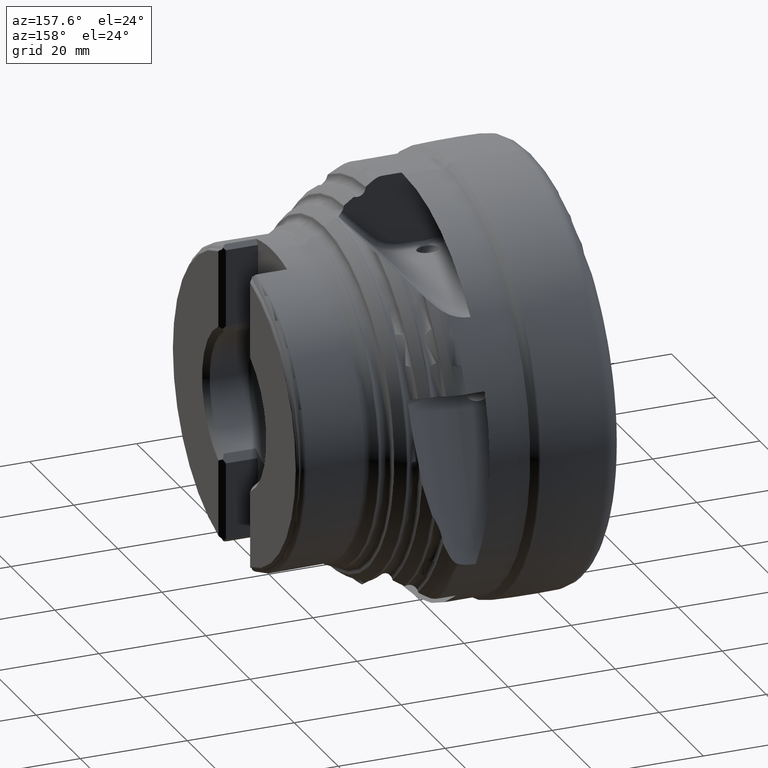
[diagram: clean part render]
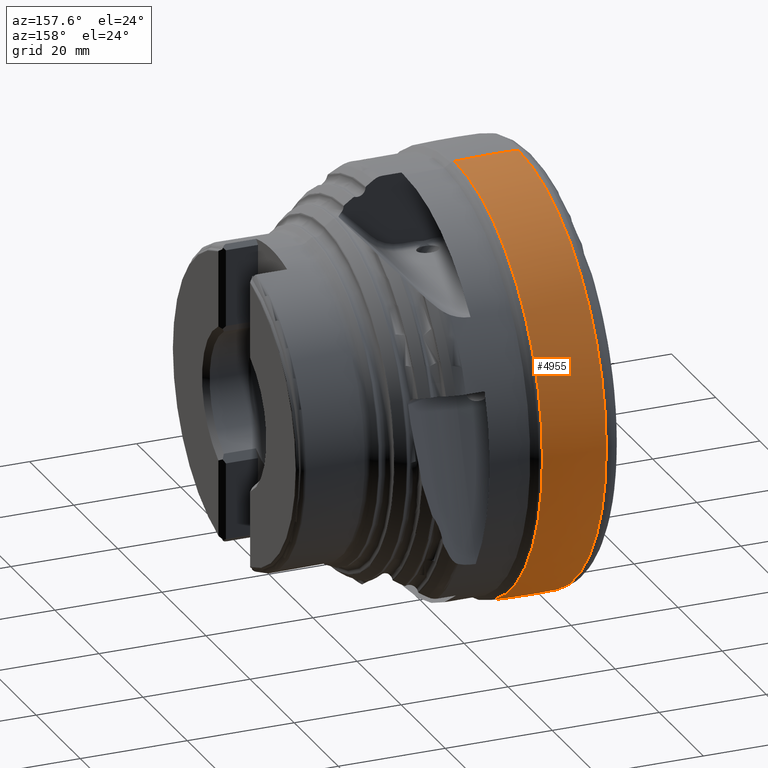
[diagram: same view with one face highlighted and labeled with its STEP entity id]
A machine part, auxiliary view. The second image highlights one B-rep face of the part: STEP entity #4955.
In plain terms, the highlighted toroidal blend (fillet) surface has major radius 119.593 mm and minor (blend) radius 159.662 mm.
Its self-contained STEP definition (entity closure, byte-faithful):
#519 = AXIS2_PLACEMENT_3D ( 'NONE', #2164, #2103, #2114 ) ;
#944 = FACE_OUTER_BOUND ( 'NONE', #6304, .T. ) ;
#951 = TOROIDAL_SURFACE ( 'NONE', #519, -119.5928892692118500, 159.6616597382648900 ) ;
#1224 = CIRCLE ( 'NONE', #1971, 39.90586794183403900 ) ;
#1228 = CIRCLE ( 'NONE', #1972, 159.6616597382648600 ) ;
#1238 = CIRCLE ( 'NONE', #1978, 159.6616597382648600 ) ;
#1254 = CIRCLE ( 'NONE', #1990, 40.00000000000000000 ) ;
#1971 = AXIS2_PLACEMENT_3D ( 'NONE', #2652, #2653, #2654 ) ;
#1972 = AXIS2_PLACEMENT_3D ( 'NONE', #2655, #2683, #2684 ) ;
#1978 = AXIS2_PLACEMENT_3D ( 'NONE', #2737, #2774, #2775 ) ;
#1990 = AXIS2_PLACEMENT_3D ( 'NONE', #2835, #2841, #2842 ) ;
#2103 = DIRECTION ( 'NONE',  ( -1.000000000000000000, -0.0000000000000000000, -0.0000000000000000000 ) ) ;
#2114 = DIRECTION ( 'NONE',  ( 0.0000000000000000000, 0.0000000000000000000, 1.000000000000000000 ) ) ;
#2164 = CARTESIAN_POINT ( 'NONE',  ( 6.339659694705658500, 0.0000000000000000000, 0.0000000000000000000 ) ) ;
#2652 = CARTESIAN_POINT ( 'NONE',  ( 13.55021019444645200, 0.0000000000000000000, 0.0000000000000000000 ) ) ;
#2653 = DIRECTION ( 'NONE',  ( -1.000000000000000000, -0.0000000000000000000, -0.0000000000000000000 ) ) ;
#2654 = DIRECTION ( 'NONE',  ( 0.0000000000000000000, 0.0000000000000000000, 1.000000000000000000 ) ) ;
#2655 = CARTESIAN_POINT ( 'NONE',  ( 6.339659694705658500, -1.464590490443241500E-014, 119.5928892692118500 ) ) ;
#2683 = DIRECTION ( 'NONE',  ( -0.0000000000000000000, 1.000000000000000000, 1.224646799147353200E-016 ) ) ;
#2684 = DIRECTION ( 'NONE',  ( 0.0000000000000000000, -1.224646799147353200E-016, 1.000000000000000000 ) ) ;
#2737 = CARTESIAN_POINT ( 'NONE',  ( 6.339659694705658500, 0.0000000000000000000, -119.5928892692118500 ) ) ;
#2774 = DIRECTION ( 'NONE',  ( 0.0000000000000000000, -1.000000000000000000, 0.0000000000000000000 ) ) ;
#2775 = DIRECTION ( 'NONE',  ( 0.0000000000000000000, 0.0000000000000000000, -1.000000000000000000 ) ) ;
#2835 = CARTESIAN_POINT ( 'NONE',  ( 1.654012985600396200, 0.0000000000000000000, 0.0000000000000000000 ) ) ;
#2841 = DIRECTION ( 'NONE',  ( -1.000000000000000000, -0.0000000000000000000, -0.0000000000000000000 ) ) ;
#2842 = DIRECTION ( 'NONE',  ( 0.0000000000000000000, 0.0000000000000000000, 1.000000000000000000 ) ) ;
#3806 = CARTESIAN_POINT ( 'NONE',  ( 13.55021019444645200, 4.887059344216402700E-015, -39.90586794183403900 ) ) ;
#3807 = CARTESIAN_POINT ( 'NONE',  ( 1.654012985600396200, 0.0000000000000000000, 40.00000000000000700 ) ) ;
#3809 = CARTESIAN_POINT ( 'NONE',  ( 13.55021019444645200, 0.0000000000000000000, 39.90586794183403900 ) ) ;
#3810 = CARTESIAN_POINT ( 'NONE',  ( 1.654012985600396200, 4.898587196589413800E-015, -40.00000000000000700 ) ) ;
#4955 = ADVANCED_FACE ( 'NONE', ( #944 ), #951, .T. ) ;
#5145 = EDGE_CURVE ( 'NONE', #6852, #6849, #1224, .T. ) ;
#5150 = EDGE_CURVE ( 'NONE', #6849, #6853, #1228, .T. ) ;
#5165 = EDGE_CURVE ( 'NONE', #6852, #6850, #1238, .T. ) ;
#5182 = EDGE_CURVE ( 'NONE', #6850, #6853, #1254, .T. ) ;
#5465 = ORIENTED_EDGE ( 'NONE', *, *, #5145, .T. ) ;
#5470 = ORIENTED_EDGE ( 'NONE', *, *, #5150, .T. ) ;
#5471 = ORIENTED_EDGE ( 'NONE', *, *, #5182, .F. ) ;
#5477 = ORIENTED_EDGE ( 'NONE', *, *, #5165, .F. ) ;
#6304 = EDGE_LOOP ( 'NONE', ( #5465, #5470, #5471, #5477 ) ) ;
#6849 = VERTEX_POINT ( 'NONE', #3806 ) ;
#6850 = VERTEX_POINT ( 'NONE', #3807 ) ;
#6852 = VERTEX_POINT ( 'NONE', #3809 ) ;
#6853 = VERTEX_POINT ( 'NONE', #3810 ) ;